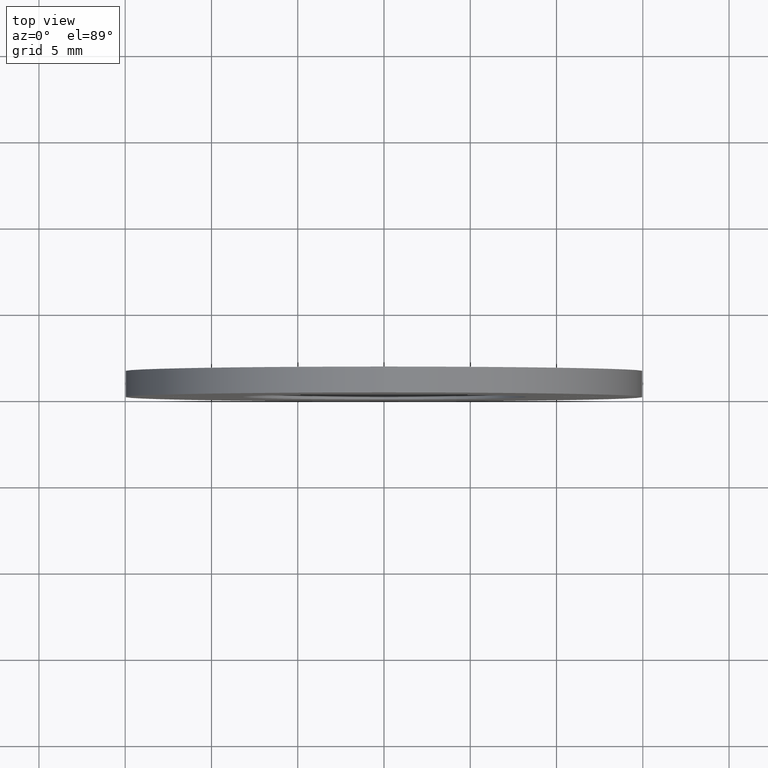
[diagram: clean part render]
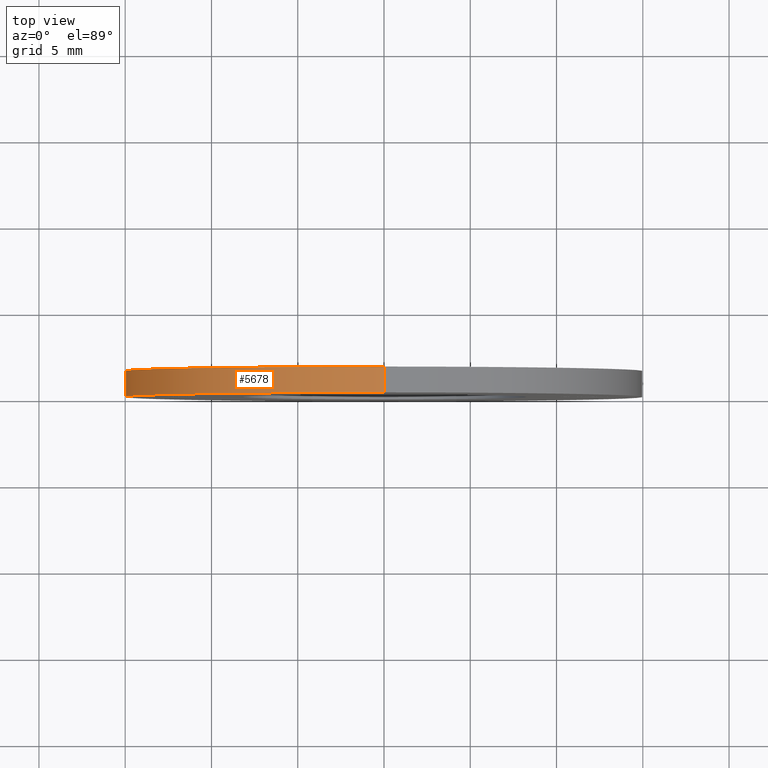
[diagram: same view with one face highlighted and labeled with its STEP entity id]
A machine part, top view. The second image highlights one B-rep face of the part: STEP entity #5678.
In plain terms, the highlighted cylindrical surface (partial cylindrical patch) has radius 15 mm, axis along (-0, -1, -0).
Its self-contained STEP definition (entity closure, byte-faithful):
#198 = VERTEX_POINT ( 'NONE', #8340 ) ;
#751 = LINE ( 'NONE', #8683, #9515 ) ;
#884 = CARTESIAN_POINT ( 'NONE',  ( 0.0000000000000000000, 1.500000000000000000, 0.0000000000000000000 ) ) ;
#1207 = ORIENTED_EDGE ( 'NONE', *, *, #6860, .F. ) ;
#1931 = VERTEX_POINT ( 'NONE', #10859 ) ;
#2172 = ORIENTED_EDGE ( 'NONE', *, *, #8260, .F. ) ;
#2592 = DIRECTION ( 'NONE',  ( 0.0000000000000000000, 0.0000000000000000000, 1.000000000000000000 ) ) ;
#2975 = CARTESIAN_POINT ( 'NONE',  ( 0.0000000000000000000, 1.500000000000000000, -15.00000000000000000 ) ) ;
#3423 = EDGE_CURVE ( 'NONE', #198, #5373, #7015, .T. ) ;
#3582 = CYLINDRICAL_SURFACE ( 'NONE', #5542, 15.00000000000000000 ) ;
#4882 = CARTESIAN_POINT ( 'NONE',  ( 0.0000000000000000000, 0.0000000000000000000, 0.0000000000000000000 ) ) ;
#5124 = VERTEX_POINT ( 'NONE', #5165 ) ;
#5165 = CARTESIAN_POINT ( 'NONE',  ( 1.836970198721029600E-015, 1.500000000000000000, 15.00000000000000000 ) ) ;
#5191 = EDGE_LOOP ( 'NONE', ( #2172, #1207, #13075, #13932 ) ) ;
#5373 = VERTEX_POINT ( 'NONE', #12905 ) ;
#5434 = AXIS2_PLACEMENT_3D ( 'NONE', #4882, #8383, #2592 ) ;
#5542 = AXIS2_PLACEMENT_3D ( 'NONE', #10253, #6755, #9059 ) ;
#5678 = ADVANCED_FACE ( 'NONE', ( #6978 ), #3582, .T. ) ;
#6384 = DIRECTION ( 'NONE',  ( 0.0000000000000000000, 1.000000000000000000, 0.0000000000000000000 ) ) ;
#6755 = DIRECTION ( 'NONE',  ( -0.0000000000000000000, -1.000000000000000000, -0.0000000000000000000 ) ) ;
#6860 = EDGE_CURVE ( 'NONE', #1931, #5124, #9382, .T. ) ;
#6978 = FACE_OUTER_BOUND ( 'NONE', #5191, .T. ) ;
#7015 = CIRCLE ( 'NONE', #5434, 15.00000000000000000 ) ;
#7425 = VECTOR ( 'NONE', #9710, 1000.000000000000000 ) ;
#8260 = EDGE_CURVE ( 'NONE', #5124, #5373, #751, .T. ) ;
#8340 = CARTESIAN_POINT ( 'NONE',  ( 0.0000000000000000000, 0.0000000000000000000, -15.00000000000000000 ) ) ;
#8383 = DIRECTION ( 'NONE',  ( 0.0000000000000000000, 1.000000000000000000, 0.0000000000000000000 ) ) ;
#8631 = DIRECTION ( 'NONE',  ( -0.0000000000000000000, -1.000000000000000000, -0.0000000000000000000 ) ) ;
#8683 = CARTESIAN_POINT ( 'NONE',  ( 1.836970198721029600E-015, 1.500000000000000000, 15.00000000000000000 ) ) ;
#9059 = DIRECTION ( 'NONE',  ( 0.0000000000000000000, 0.0000000000000000000, -1.000000000000000000 ) ) ;
#9382 = CIRCLE ( 'NONE', #10710, 15.00000000000000000 ) ;
#9515 = VECTOR ( 'NONE', #8631, 1000.000000000000000 ) ;
#9710 = DIRECTION ( 'NONE',  ( -0.0000000000000000000, -1.000000000000000000, -0.0000000000000000000 ) ) ;
#10253 = CARTESIAN_POINT ( 'NONE',  ( 0.0000000000000000000, 1.500000000000000000, 0.0000000000000000000 ) ) ;
#10710 = AXIS2_PLACEMENT_3D ( 'NONE', #884, #6384, #14653 ) ;
#10859 = CARTESIAN_POINT ( 'NONE',  ( 0.0000000000000000000, 1.500000000000000000, -15.00000000000000000 ) ) ;
#11489 = EDGE_CURVE ( 'NONE', #1931, #198, #14596, .T. ) ;
#12905 = CARTESIAN_POINT ( 'NONE',  ( 1.836970198721029600E-015, 0.0000000000000000000, 15.00000000000000000 ) ) ;
#13075 = ORIENTED_EDGE ( 'NONE', *, *, #11489, .T. ) ;
#13932 = ORIENTED_EDGE ( 'NONE', *, *, #3423, .T. ) ;
#14596 = LINE ( 'NONE', #2975, #7425 ) ;
#14653 = DIRECTION ( 'NONE',  ( 0.0000000000000000000, 0.0000000000000000000, 1.000000000000000000 ) ) ;